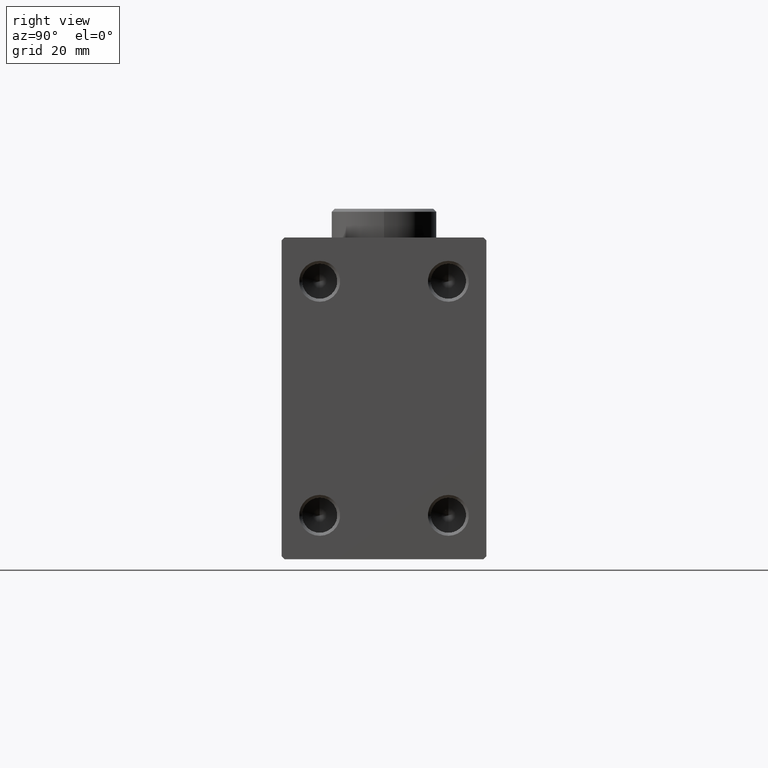
[diagram: clean part render]
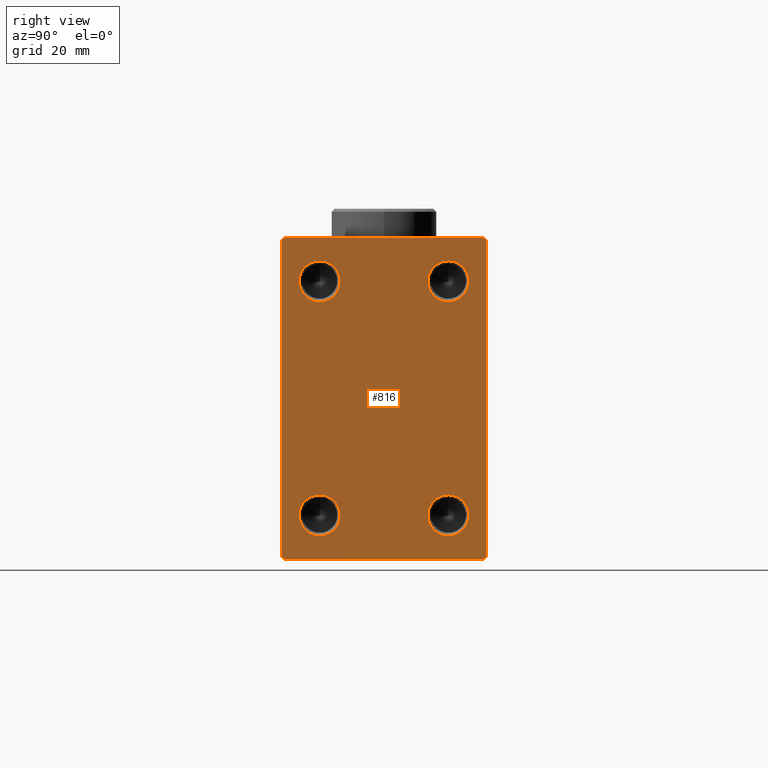
[diagram: same view with one face highlighted and labeled with its STEP entity id]
A machine part, right view. The second image highlights one B-rep face of the part: STEP entity #816.
In plain terms, the highlighted planar face has unit normal (1, 0, 0).
Its self-contained STEP definition (entity closure, byte-faithful):
#559 = VERTEX_POINT ( 'NONE', #37458 ) ;
#767 = ORIENTED_EDGE ( 'NONE', *, *, #4405, .F. ) ;
#816 = ADVANCED_FACE ( 'NONE', ( #24012, #10186, #3522, #38475, #6965 ), #35483, .T. ) ;
#872 = CARTESIAN_POINT ( 'NONE',  ( 95.00000000000000000, 17.00000000000000000, 27.49999999999999289 ) ) ;
#1194 = CIRCLE ( 'NONE', #25444, 3.499999999999989342 ) ;
#1671 = CARTESIAN_POINT ( 'NONE',  ( 95.00000000000000000, 17.50000000000000000, 26.99999999999998224 ) ) ;
#1804 = CARTESIAN_POINT ( 'NONE',  ( 95.00000000000000000, -11.00000000000000533, -20.00000000000000000 ) ) ;
#1899 = DIRECTION ( 'NONE',  ( 0.000000000000000000, 0.000000000000000000, -1.000000000000000000 ) ) ;
#2229 = ORIENTED_EDGE ( 'NONE', *, *, #16288, .F. ) ;
#2364 = VECTOR ( 'NONE', #17764, 1000.000000000000114 ) ;
#2930 = DIRECTION ( 'NONE',  ( 1.000000000000000000, -0.000000000000000000, -0.000000000000000000 ) ) ;
#3241 = CARTESIAN_POINT ( 'NONE',  ( 95.00000000000000000, -11.00000000000000533, -16.50000000000000711 ) ) ;
#3401 = DIRECTION ( 'NONE',  ( 0.000000000000000000, -1.000000000000000000, -1.982541115402065356E-16 ) ) ;
#3522 = FACE_BOUND ( 'NONE', #43812, .T. ) ;
#3824 = DIRECTION ( 'NONE',  ( 0.000000000000000000, 0.000000000000000000, -1.000000000000000000 ) ) ;
#4016 = EDGE_CURVE ( 'NONE', #27519, #13713, #19883, .T. ) ;
#4273 = ORIENTED_EDGE ( 'NONE', *, *, #32572, .T. ) ;
#4351 = DIRECTION ( 'NONE',  ( 0.000000000000000000, 0.000000000000000000, -1.000000000000000000 ) ) ;
#4405 = EDGE_CURVE ( 'NONE', #31246, #9724, #32307, .T. ) ;
#4441 = EDGE_CURVE ( 'NONE', #45517, #12055, #13998, .T. ) ;
#4483 = DIRECTION ( 'NONE',  ( 0.000000000000000000, -1.261617073437677752E-16, 1.000000000000000000 ) ) ;
#4976 = CIRCLE ( 'NONE', #5728, 3.499999999999989342 ) ;
#5558 = CARTESIAN_POINT ( 'NONE',  ( 95.00000000000000000, -11.00000000000000533, -23.49999999999999289 ) ) ;
#5728 = AXIS2_PLACEMENT_3D ( 'NONE', #45479, #2930, #27994 ) ;
#6665 = AXIS2_PLACEMENT_3D ( 'NONE', #34390, #9761, #16675 ) ;
#6816 = ORIENTED_EDGE ( 'NONE', *, *, #26322, .F. ) ;
#6829 = CIRCLE ( 'NONE', #32535, 3.499999999999989342 ) ;
#6965 = FACE_OUTER_BOUND ( 'NONE', #42207, .T. ) ;
#7142 = CARTESIAN_POINT ( 'NONE',  ( 95.00000000000000000, -17.49999999999999645, 26.99999999999997158 ) ) ;
#7230 = VERTEX_POINT ( 'NONE', #34495 ) ;
#7929 = AXIS2_PLACEMENT_3D ( 'NONE', #17542, #38037, #31574 ) ;
#7944 = CARTESIAN_POINT ( 'NONE',  ( 95.00000000000000000, -22.25000000000022382, 22.24999999999960565 ) ) ;
#8052 = DIRECTION ( 'NONE',  ( -0.000000000000000000, 0.7071067811865474617, 0.7071067811865474617 ) ) ;
#8559 = VECTOR ( 'NONE', #3401, 1000.000000000000000 ) ;
#8847 = CARTESIAN_POINT ( 'NONE',  ( 95.00000000000000000, 11.00000000000000178, -16.50000000000000711 ) ) ;
#9040 = ORIENTED_EDGE ( 'NONE', *, *, #11170, .F. ) ;
#9458 = EDGE_LOOP ( 'NONE', ( #15130, #767 ) ) ;
#9724 = VERTEX_POINT ( 'NONE', #18291 ) ;
#9761 = DIRECTION ( 'NONE',  ( 1.000000000000000000, -0.000000000000000000, -0.000000000000000000 ) ) ;
#10186 = FACE_BOUND ( 'NONE', #35763, .T. ) ;
#11170 = EDGE_CURVE ( 'NONE', #36928, #36049, #27360, .T. ) ;
#11322 = CARTESIAN_POINT ( 'NONE',  ( 95.00000000000000000, 22.25000000000017408, 22.24999999999971223 ) ) ;
#11354 = CARTESIAN_POINT ( 'NONE',  ( 95.00000000000000000, 11.00000000000000178, 16.50000000000001421 ) ) ;
#11657 = DIRECTION ( 'NONE',  ( 1.000000000000000000, -0.000000000000000000, -0.000000000000000000 ) ) ;
#11831 = DIRECTION ( 'NONE',  ( 0.000000000000000000, -0.7071067811865376918, -0.7071067811865574537 ) ) ;
#12055 = VERTEX_POINT ( 'NONE', #40992 ) ;
#12223 = ORIENTED_EDGE ( 'NONE', *, *, #19723, .T. ) ;
#13171 = EDGE_CURVE ( 'NONE', #13713, #27519, #6829, .T. ) ;
#13459 = VECTOR ( 'NONE', #3824, 1000.000000000000000 ) ;
#13646 = DIRECTION ( 'NONE',  ( 0.000000000000000000, 0.000000000000000000, -1.000000000000000000 ) ) ;
#13713 = VERTEX_POINT ( 'NONE', #24984 ) ;
#13746 = EDGE_CURVE ( 'NONE', #19348, #7230, #18311, .T. ) ;
#13998 = LINE ( 'NONE', #28046, #39656 ) ;
#14543 = LINE ( 'NONE', #11322, #2364 ) ;
#14888 = ORIENTED_EDGE ( 'NONE', *, *, #13746, .T. ) ;
#14892 = VECTOR ( 'NONE', #8052, 1000.000000000000114 ) ;
#15130 = ORIENTED_EDGE ( 'NONE', *, *, #30950, .F. ) ;
#16158 = CARTESIAN_POINT ( 'NONE',  ( 95.00000000000000000, -11.00000000000000533, 20.00000000000000711 ) ) ;
#16288 = EDGE_CURVE ( 'NONE', #30229, #28830, #16482, .T. ) ;
#16482 = CIRCLE ( 'NONE', #31911, 3.499999999999989342 ) ;
#16675 = DIRECTION ( 'NONE',  ( 0.000000000000000000, 0.000000000000000000, -1.000000000000000000 ) ) ;
#17542 = CARTESIAN_POINT ( 'NONE',  ( 95.00000000000000000, 0.000000000000000000, 0.000000000000000000 ) ) ;
#17764 = DIRECTION ( 'NONE',  ( -0.000000000000000000, -0.7071067811865402453, 0.7071067811865549002 ) ) ;
#18291 = CARTESIAN_POINT ( 'NONE',  ( 95.00000000000000000, 11.00000000000000178, 23.50000000000000000 ) ) ;
#18311 = LINE ( 'NONE', #25222, #13459 ) ;
#18512 = LINE ( 'NONE', #7944, #30850 ) ;
#18559 = DIRECTION ( 'NONE',  ( 0.000000000000000000, 0.000000000000000000, -1.000000000000000000 ) ) ;
#19221 = CARTESIAN_POINT ( 'NONE',  ( 95.00000000000000000, -16.99999999999997868, -27.50000000000000711 ) ) ;
#19348 = VERTEX_POINT ( 'NONE', #7142 ) ;
#19723 = EDGE_CURVE ( 'NONE', #7230, #45517, #41047, .T. ) ;
#19883 = CIRCLE ( 'NONE', #6665, 3.499999999999989342 ) ;
#21141 = ORIENTED_EDGE ( 'NONE', *, *, #32494, .T. ) ;
#21603 = VERTEX_POINT ( 'NONE', #39750 ) ;
#23697 = ORIENTED_EDGE ( 'NONE', *, *, #41561, .T. ) ;
#24012 = FACE_BOUND ( 'NONE', #9458, .T. ) ;
#24147 = CARTESIAN_POINT ( 'NONE',  ( 95.00000000000000000, 11.00000000000000178, 20.00000000000000711 ) ) ;
#24984 = CARTESIAN_POINT ( 'NONE',  ( 95.00000000000000000, -11.00000000000000533, 23.50000000000000000 ) ) ;
#25222 = CARTESIAN_POINT ( 'NONE',  ( 95.00000000000000000, -17.49999999999999645, 27.49999999999998579 ) ) ;
#25246 = CIRCLE ( 'NONE', #25977, 3.499999999999989342 ) ;
#25444 = AXIS2_PLACEMENT_3D ( 'NONE', #1804, #32870, #4351 ) ;
#25977 = AXIS2_PLACEMENT_3D ( 'NONE', #38034, #45177, #13646 ) ;
#26093 = ORIENTED_EDGE ( 'NONE', *, *, #39502, .F. ) ;
#26322 = EDGE_CURVE ( 'NONE', #36049, #36928, #1194, .T. ) ;
#26556 = EDGE_CURVE ( 'NONE', #30796, #559, #34914, .T. ) ;
#27360 = CIRCLE ( 'NONE', #42740, 3.499999999999989342 ) ;
#27519 = VERTEX_POINT ( 'NONE', #41559 ) ;
#27994 = DIRECTION ( 'NONE',  ( 0.000000000000000000, 0.000000000000000000, -1.000000000000000000 ) ) ;
#28046 = CARTESIAN_POINT ( 'NONE',  ( 95.00000000000000000, -17.49999999999999645, -27.50000000000000711 ) ) ;
#28413 = ORIENTED_EDGE ( 'NONE', *, *, #4441, .T. ) ;
#28830 = VERTEX_POINT ( 'NONE', #38676 ) ;
#29332 = LINE ( 'NONE', #42669, #35260 ) ;
#29854 = EDGE_LOOP ( 'NONE', ( #2229, #26093 ) ) ;
#30070 = ORIENTED_EDGE ( 'NONE', *, *, #4016, .F. ) ;
#30229 = VERTEX_POINT ( 'NONE', #8847 ) ;
#30432 = CARTESIAN_POINT ( 'NONE',  ( 95.00000000000000000, -11.00000000000000533, -20.00000000000000000 ) ) ;
#30462 = ORIENTED_EDGE ( 'NONE', *, *, #13171, .F. ) ;
#30796 = VERTEX_POINT ( 'NONE', #872 ) ;
#30850 = VECTOR ( 'NONE', #11831, 999.9999999999998863 ) ;
#30950 = EDGE_CURVE ( 'NONE', #9724, #31246, #4976, .T. ) ;
#31053 = DIRECTION ( 'NONE',  ( 1.000000000000000000, -0.000000000000000000, -0.000000000000000000 ) ) ;
#31246 = VERTEX_POINT ( 'NONE', #11354 ) ;
#31349 = VERTEX_POINT ( 'NONE', #1671 ) ;
#31574 = DIRECTION ( 'NONE',  ( 0.000000000000000000, 0.000000000000000000, -1.000000000000000000 ) ) ;
#31911 = AXIS2_PLACEMENT_3D ( 'NONE', #35604, #11657, #18559 ) ;
#32307 = CIRCLE ( 'NONE', #45551, 3.499999999999989342 ) ;
#32494 = EDGE_CURVE ( 'NONE', #559, #19348, #18512, .T. ) ;
#32535 = AXIS2_PLACEMENT_3D ( 'NONE', #16158, #41005, #1899 ) ;
#32572 = EDGE_CURVE ( 'NONE', #21603, #31349, #29332, .T. ) ;
#32870 = DIRECTION ( 'NONE',  ( 1.000000000000000000, -0.000000000000000000, -0.000000000000000000 ) ) ;
#33650 = DIRECTION ( 'NONE',  ( 0.000000000000000000, 0.000000000000000000, -1.000000000000000000 ) ) ;
#34153 = CARTESIAN_POINT ( 'NONE',  ( 95.00000000000000000, -22.24999999999999289, -22.24999999999999289 ) ) ;
#34390 = CARTESIAN_POINT ( 'NONE',  ( 95.00000000000000000, -11.00000000000000533, 20.00000000000000711 ) ) ;
#34495 = CARTESIAN_POINT ( 'NONE',  ( 95.00000000000000000, -17.49999999999999645, -26.99999999999999289 ) ) ;
#34914 = LINE ( 'NONE', #42261, #8559 ) ;
#35260 = VECTOR ( 'NONE', #4483, 1000.000000000000000 ) ;
#35483 = PLANE ( 'NONE',  #7929 ) ;
#35604 = CARTESIAN_POINT ( 'NONE',  ( 95.00000000000000000, 11.00000000000000178, -20.00000000000000000 ) ) ;
#35722 = EDGE_CURVE ( 'NONE', #31349, #30796, #14543, .T. ) ;
#35763 = EDGE_LOOP ( 'NONE', ( #30462, #30070 ) ) ;
#36049 = VERTEX_POINT ( 'NONE', #3241 ) ;
#36116 = LINE ( 'NONE', #39335, #14892 ) ;
#36675 = ORIENTED_EDGE ( 'NONE', *, *, #35722, .T. ) ;
#36917 = DIRECTION ( 'NONE',  ( -0.000000000000000000, 0.7071067811865474617, -0.7071067811865474617 ) ) ;
#36928 = VERTEX_POINT ( 'NONE', #5558 ) ;
#37458 = CARTESIAN_POINT ( 'NONE',  ( 95.00000000000000000, -16.99999999999999289, 27.49999999999998579 ) ) ;
#37722 = DIRECTION ( 'NONE',  ( 0.000000000000000000, 0.000000000000000000, -1.000000000000000000 ) ) ;
#38034 = CARTESIAN_POINT ( 'NONE',  ( 95.00000000000000000, 11.00000000000000178, -20.00000000000000000 ) ) ;
#38037 = DIRECTION ( 'NONE',  ( 1.000000000000000000, 0.000000000000000000, 0.000000000000000000 ) ) ;
#38475 = FACE_BOUND ( 'NONE', #29854, .T. ) ;
#38676 = CARTESIAN_POINT ( 'NONE',  ( 95.00000000000000000, 11.00000000000000178, -23.49999999999999289 ) ) ;
#39335 = CARTESIAN_POINT ( 'NONE',  ( 95.00000000000000000, 22.25000000000000355, -22.25000000000000355 ) ) ;
#39502 = EDGE_CURVE ( 'NONE', #28830, #30229, #25246, .T. ) ;
#39656 = VECTOR ( 'NONE', #42067, 1000.000000000000000 ) ;
#39750 = CARTESIAN_POINT ( 'NONE',  ( 95.00000000000000000, 17.50000000000000711, -26.99999999999999645 ) ) ;
#40313 = DIRECTION ( 'NONE',  ( 1.000000000000000000, -0.000000000000000000, -0.000000000000000000 ) ) ;
#40656 = ORIENTED_EDGE ( 'NONE', *, *, #26556, .T. ) ;
#40992 = CARTESIAN_POINT ( 'NONE',  ( 95.00000000000000000, 16.99999999999999289, -27.50000000000001066 ) ) ;
#41005 = DIRECTION ( 'NONE',  ( 1.000000000000000000, -0.000000000000000000, -0.000000000000000000 ) ) ;
#41047 = LINE ( 'NONE', #34153, #45230 ) ;
#41559 = CARTESIAN_POINT ( 'NONE',  ( 95.00000000000000000, -11.00000000000000533, 16.50000000000001421 ) ) ;
#41561 = EDGE_CURVE ( 'NONE', #12055, #21603, #36116, .T. ) ;
#42067 = DIRECTION ( 'NONE',  ( 0.000000000000000000, 1.000000000000000000, -9.912705577010325549E-17 ) ) ;
#42207 = EDGE_LOOP ( 'NONE', ( #40656, #21141, #14888, #12223, #28413, #23697, #4273, #36675 ) ) ;
#42261 = CARTESIAN_POINT ( 'NONE',  ( 95.00000000000000000, 17.50000000000000000, 27.49999999999999289 ) ) ;
#42669 = CARTESIAN_POINT ( 'NONE',  ( 95.00000000000000000, 17.50000000000000711, -27.50000000000001066 ) ) ;
#42740 = AXIS2_PLACEMENT_3D ( 'NONE', #30432, #40313, #33650 ) ;
#43812 = EDGE_LOOP ( 'NONE', ( #6816, #9040 ) ) ;
#45177 = DIRECTION ( 'NONE',  ( 1.000000000000000000, -0.000000000000000000, -0.000000000000000000 ) ) ;
#45230 = VECTOR ( 'NONE', #36917, 1000.000000000000114 ) ;
#45479 = CARTESIAN_POINT ( 'NONE',  ( 95.00000000000000000, 11.00000000000000178, 20.00000000000000711 ) ) ;
#45517 = VERTEX_POINT ( 'NONE', #19221 ) ;
#45551 = AXIS2_PLACEMENT_3D ( 'NONE', #24147, #31053, #37722 ) ;